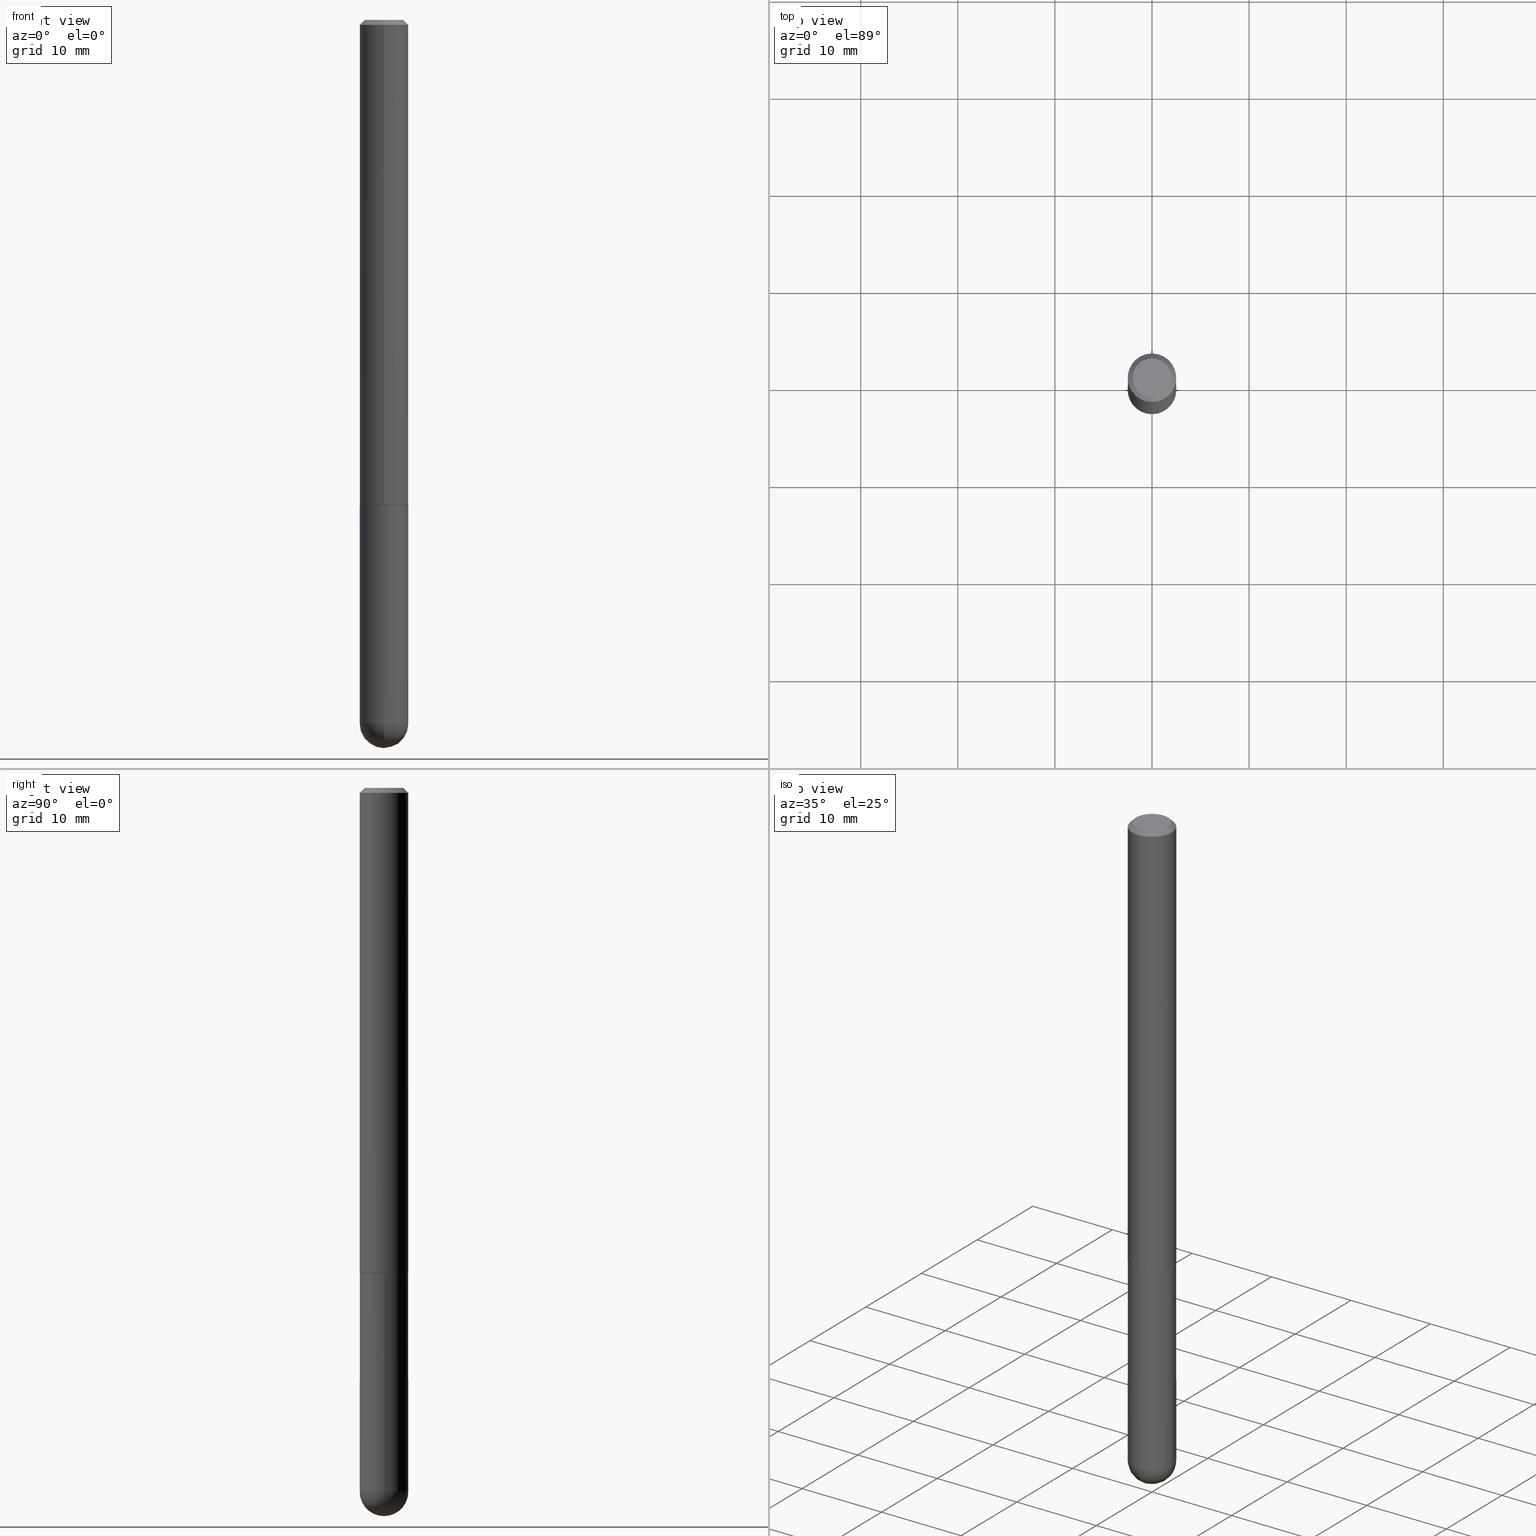
[diagram: canonical four-view strip — front | top / right | iso, engineering-drawing reading convention]
A machine part, canonical four-view strip (front | top / right | iso — engineering-drawing reading convention). The complete STEP part file that produces these views, byte-faithful:
ISO-10303-21;
HEADER;
FILE_DESCRIPTION (( 'STEP AP203' ),
    '1' );
FILE_NAME ('49612.STEP',
    '2024-04-10T12:30:21',
    ( '' ),
    ( '' ),
    'SwSTEP 2.0',
    'SolidWorks 2023',
    '' );
FILE_SCHEMA (( 'CONFIG_CONTROL_DESIGN' ));
ENDSEC;

DATA;
#1 = CARTESIAN_POINT ( 'NONE',  ( -1.550680728280366901E-45, 2.201055714348533762E-31, 6.322583305672671877E-17 ) ) ;
#2 = CALENDAR_DATE ( 2024, 10, 4 ) ;
#3 = ORIENTED_EDGE ( 'NONE', *, *, #26, .T. ) ;
#4 = CARTESIAN_POINT ( 'NONE',  ( 6.874726756182819798E-16, 0.09844999999998993445, -2.854350000000000165 ) ) ;
#5 = CARTESIAN_POINT ( 'NONE',  ( 6.924238959982656172E-16, 0.09744999999999312545, -1.968500000000000361 ) ) ;
#6 = CONICAL_SURFACE ( 'NONE', #368, 0.09844999999999998197, 0.7853981633974471688 ) ;
#7 = EDGE_CURVE ( 'NONE', #299, #39, #358, .T. ) ;
#8 = CARTESIAN_POINT ( 'NONE',  ( 0.09844999999999998197, -6.874726756182128559E-16, 4.800596035771097813E-30 ) ) ;
#9 =( LENGTH_UNIT ( ) NAMED_UNIT ( * ) SI_UNIT ( $, .METRE. ) );
#10 = MECHANICAL_CONTEXT ( 'NONE', #125, 'mechanical' ) ;
#11 = ORIENTED_EDGE ( 'NONE', *, *, #131, .T. ) ;
#12 = PLANE ( 'NONE',  #118 ) ;
#13 = DIRECTION ( 'NONE',  ( -6.982962677686265922E-15, -1.000000000000000000, 3.481260124123204048E-15 ) ) ;
#14 = CC_DESIGN_PERSON_AND_ORGANIZATION_ASSIGNMENT ( #348, #38, ( #184 ) ) ;
#15 = ADVANCED_FACE ( 'NONE', ( #163 ), #61, .T. ) ;
#16 = FACE_OUTER_BOUND ( 'NONE', #72, .T. ) ;
#17 = LOCAL_TIME ( 8, 30, 21.00000000000000000, #150 ) ;
#18 = CARTESIAN_POINT ( 'NONE',  ( 4.813905344975440714E-29, -6.872981015512730918E-15, -1.968499999999999694 ) ) ;
#19 = DIRECTION ( 'NONE',  ( 6.982962677686265922E-15, 1.000000000000000000, -5.549716594543940975E-15 ) ) ;
#20 = ORIENTED_EDGE ( 'NONE', *, *, #161, .T. ) ;
#21 = DATE_TIME_ROLE ( 'classification_date' ) ;
#22 = ORIENTED_EDGE ( 'NONE', *, *, #313, .F. ) ;
#23 = DIRECTION ( 'NONE',  ( 1.000000000000000000, -6.982962677686276177E-15, 0.000000000000000000 ) ) ;
#24 = AXIS2_PLACEMENT_3D ( 'NONE', #128, #94, #217 ) ;
#25 = CIRCLE ( 'NONE', #298, 0.09844999999999998197 ) ;
#26 = EDGE_CURVE ( 'NONE', #376, #54, #104, .T. ) ;
#27 = EDGE_CURVE ( 'NONE', #179, #233, #86, .T. ) ;
#28 = AXIS2_PLACEMENT_3D ( 'NONE', #255, #84, #276 ) ;
#29 = EDGE_LOOP ( 'NONE', ( #145, #88, #115, #352, #91 ) ) ;
#30 = ORIENTED_EDGE ( 'NONE', *, *, #235, .F. ) ;
#31 = MANIFOLD_SOLID_BREP ( 'Body-Move/Copy2[2]', #212 ) ;
#32 = APPROVAL_DATE_TIME ( #303, #378 ) ;
#33 = PRODUCT_DEFINITION ( 'UNKNOWN', '', #234, #180 ) ;
#34 = CIRCLE ( 'NONE', #372, 0.09844999999999998197 ) ;
#35 = SECURITY_CLASSIFICATION_LEVEL ( 'unclassified' ) ;
#36 = LINE ( 'NONE', #5, #37 ) ;
#37 = VECTOR ( 'NONE', #62, 39.37007874015748854 ) ;
#38 = PERSON_AND_ORGANIZATION_ROLE ( 'classification_officer' ) ;
#39 = VERTEX_POINT ( 'NONE', #356 ) ;
#40 = DIRECTION ( 'NONE',  ( -6.982962677686266711E-15, -1.000000000000000000, 2.803332984776053426E-15 ) ) ;
#41 = DIRECTION ( 'NONE',  ( -2.452606242276133797E-29, 3.481260124123203654E-15, 1.000000000000000000 ) ) ;
#42 = EDGE_CURVE ( 'NONE', #57, #197, #63, .T. ) ;
#43 = CARTESIAN_POINT ( 'NONE',  ( 6.980223886934544207E-29, -9.965909759526929881E-15, -2.854349999999999721 ) ) ;
#44 = PLANE ( 'NONE',  #76 ) ;
#45 = DIRECTION ( 'NONE',  ( -2.452606242276133237E-29, 3.481260124123204048E-15, 1.000000000000000000 ) ) ;
#46 = EDGE_LOOP ( 'NONE', ( #49, #11, #266, #251 ) ) ;
#47 = ADVANCED_FACE ( 'NONE', ( #107 ), #199, .F. ) ;
#48 = ORIENTED_EDGE ( 'NONE', *, *, #146, .T. ) ;
#49 = ORIENTED_EDGE ( 'NONE', *, *, #261, .F. ) ;
#50 = VECTOR ( 'NONE', #165, 39.37007874015748143 ) ;
#51 = APPROVAL_PERSON_ORGANIZATION ( #208, #264, #149 ) ;
#52 = APPROVAL_PERSON_ORGANIZATION ( #153, #85, #147 ) ;
#53 = CARTESIAN_POINT ( 'NONE',  ( 6.980223886934544207E-29, -9.965909759526929881E-15, -2.854349999999999721 ) ) ;
#54 = VERTEX_POINT ( 'NONE', #172 ) ;
#55 = ADVANCED_FACE ( 'NONE', ( #387 ), #151, .T. ) ;
#56 = AXIS2_PLACEMENT_3D ( 'NONE', #379, #166, #315 ) ;
#57 = VERTEX_POINT ( 'NONE', #284 ) ;
#58 = DIRECTION ( 'NONE',  ( 0.000000000000000000, 0.000000000000000000, 1.000000000000000000 ) ) ;
#59 = ORIENTED_EDGE ( 'NONE', *, *, #120, .F. ) ;
#60 = FACE_OUTER_BOUND ( 'NONE', #117, .T. ) ;
#61 = CYLINDRICAL_SURFACE ( 'NONE', #98, 0.09845000000000009299 ) ;
#62 = DIRECTION ( 'NONE',  ( 5.024295867787803643E-15, 0.7071067811865135999, 0.7071067811865812125 ) ) ;
#63 = CIRCLE ( 'NONE', #123, 0.07844999999999993645 ) ;
#64 = AXIS2_PLACEMENT_3D ( 'NONE', #132, #316, #65 ) ;
#65 = DIRECTION ( 'NONE',  ( -6.982962677686266711E-15, -1.000000000000000000, 2.803332984776053426E-15 ) ) ;
#66 = DIRECTION ( 'NONE',  ( -2.452606242276133797E-29, 3.481260124123203654E-15, 1.000000000000000000 ) ) ;
#67 = DIRECTION ( 'NONE',  ( 2.438088387897960049E-29, -3.491481338843145188E-15, -1.000000000000000000 ) ) ;
#68 = EDGE_CURVE ( 'NONE', #39, #230, #34, .T. ) ;
#69 = CARTESIAN_POINT ( 'NONE',  ( 6.995293233558191951E-16, 0.09845000000000009299, -3.427300592199297553E-16 ) ) ;
#70 = DIRECTION ( 'NONE',  ( -6.982962677686265922E-15, -1.000000000000000000, 3.481260124123203654E-15 ) ) ;
#71 = AXIS2_PLACEMENT_3D ( 'NONE', #224, #361, #277 ) ;
#72 = EDGE_LOOP ( 'NONE', ( #369, #20, #318, #403 ) ) ;
#73 = EDGE_CURVE ( 'NONE', #190, #179, #238, .T. ) ;
#74 = CARTESIAN_POINT ( 'NONE',  ( -0.09844999999999998197, -7.719916064164013473E-15, -2.854349999999999721 ) ) ;
#75 = ADVANCED_FACE ( 'NONE', ( #400 ), #227, .T. ) ;
#76 = AXIS2_PLACEMENT_3D ( 'NONE', #280, #67, #390 ) ;
#77 = EDGE_LOOP ( 'NONE', ( #392, #3, #130, #30, #297 ) ) ;
#78 = EDGE_LOOP ( 'NONE', ( #371, #323, #206, #148 ) ) ;
#79 = DATE_AND_TIME ( #237, #183 ) ;
#80 = CC_DESIGN_APPROVAL ( #378, ( #33 ) ) ;
#81 = LOCAL_TIME ( 8, 30, 21.00000000000000000, #269 ) ;
#82 = EDGE_LOOP ( 'NONE', ( #112, #178, #111, #405 ) ) ;
#83 = DIRECTION ( 'NONE',  ( -2.445468806185136597E-29, 3.491481338843145583E-15, 1.000000000000000000 ) ) ;
#84 = DIRECTION ( 'NONE',  ( -2.452606242276133797E-29, 3.481260124123203654E-15, 1.000000000000000000 ) ) ;
#85 = APPROVAL ( #274, 'UNSPECIFIED' ) ;
#86 = CIRCLE ( 'NONE', #331, 0.09844999999999998197 ) ;
#87 = CONICAL_SURFACE ( 'NONE', #71, 0.09844999999999998197, 0.7853981633974471688 ) ;
#88 = ORIENTED_EDGE ( 'NONE', *, *, #241, .T. ) ;
#89 = DIRECTION ( 'NONE',  ( -2.452606242276133797E-29, 3.481260124123203654E-15, 1.000000000000000000 ) ) ;
#90 = PERSON_AND_ORGANIZATION ( #272, #200 ) ;
#91 = ORIENTED_EDGE ( 'NONE', *, *, #296, .F. ) ;
#92 = FACE_OUTER_BOUND ( 'NONE', #97, .T. ) ;
#93 = LINE ( 'NONE', #285, #113 ) ;
#94 = DIRECTION ( 'NONE',  ( -2.452606242276133797E-29, 3.481260124123203654E-15, 1.000000000000000000 ) ) ;
#95 = FACE_OUTER_BOUND ( 'NONE', #225, .T. ) ;
#96 = DIRECTION ( 'NONE',  ( -6.982962677686266711E-15, -1.000000000000000000, 2.803332984776053426E-15 ) ) ;
#97 = EDGE_LOOP ( 'NONE', ( #389, #173 ) ) ;
#98 = AXIS2_PLACEMENT_3D ( 'NONE', #396, #259, #13 ) ;
#99 = DIRECTION ( 'NONE',  ( -1.000000000000000000, 7.105427357601001070E-15, -4.926315508542082329E-29 ) ) ;
#100 = EDGE_CURVE ( 'NONE', #230, #39, #144, .T. ) ;
#101 = CARTESIAN_POINT ( 'NONE',  ( 4.827955387920569844E-29, -6.852860554336525962E-15, -1.968500000000000139 ) ) ;
#102 = VERTEX_POINT ( 'NONE', #209 ) ;
#103 = CYLINDRICAL_SURFACE ( 'NONE', #28, 0.09845000000000009299 ) ;
#104 = LINE ( 'NONE', #220, #265 ) ;
#105 = FACE_OUTER_BOUND ( 'NONE', #82, .T. ) ;
#106 = EDGE_CURVE ( 'NONE', #197, #39, #337, .T. ) ;
#107 = FACE_OUTER_BOUND ( 'NONE', #223, .T. ) ;
#108 =( CONVERSION_BASED_UNIT ( 'INCH', #366 ) LENGTH_UNIT ( ) NAMED_UNIT ( #328 ) );
#109 = AXIS2_PLACEMENT_3D ( 'NONE', #393, #136, #288 ) ;
#110 = CARTESIAN_POINT ( 'NONE',  ( 4.905212484552273515E-31, -6.962520248246416231E-17, -0.02000000000000002470 ) ) ;
#111 = ORIENTED_EDGE ( 'NONE', *, *, #100, .T. ) ;
#112 = ORIENTED_EDGE ( 'NONE', *, *, #42, .F. ) ;
#113 = VECTOR ( 'NONE', #351, 39.37007874015748143 ) ;
#114 = CC_DESIGN_APPROVAL ( #264, ( #234 ) ) ;
#115 = ORIENTED_EDGE ( 'NONE', *, *, #73, .T. ) ;
#116 = DATE_AND_TIME ( #408, #81 ) ;
#117 = EDGE_LOOP ( 'NONE', ( #59, #346 ) ) ;
#118 = AXIS2_PLACEMENT_3D ( 'NONE', #290, #45, #252 ) ;
#119 = DIRECTION ( 'NONE',  ( -2.452606242276133797E-29, 3.481260124123203654E-15, 1.000000000000000000 ) ) ;
#120 = EDGE_CURVE ( 'NONE', #140, #222, #267, .T. ) ;
#121 = DATE_AND_TIME ( #2, #322 ) ;
#122 = CYLINDRICAL_SURFACE ( 'NONE', #391, 0.09844999999999998197 ) ;
#123 = AXIS2_PLACEMENT_3D ( 'NONE', #293, #66, #70 ) ;
#124 = CIRCLE ( 'NONE', #171, 0.09844999999999999585 ) ;
#125 = APPLICATION_CONTEXT ( 'configuration controlled 3d designs of mechanical parts and assemblies' ) ;
#126 = CC_DESIGN_SECURITY_CLASSIFICATION ( #184, ( #234 ) ) ;
#127 = COORDINATED_UNIVERSAL_TIME_OFFSET ( 5, 0, .BEHIND. ) ;
#128 = CARTESIAN_POINT ( 'NONE',  ( 4.827955387920569844E-29, -6.852860554336525962E-15, -1.968500000000000139 ) ) ;
#129 = DIRECTION ( 'NONE',  ( 1.000000000000000000, -6.982962677686276177E-15, 0.000000000000000000 ) ) ;
#130 = ORIENTED_EDGE ( 'NONE', *, *, #339, .F. ) ;
#131 = EDGE_CURVE ( 'NONE', #222, #140, #321, .T. ) ;
#132 = CARTESIAN_POINT ( 'NONE',  ( 4.827955387920569844E-29, -6.852860554336525962E-15, -1.968500000000000139 ) ) ;
#133 = DIRECTION ( 'NONE',  ( -6.982962677686265133E-15, -1.000000000000000000, 3.468572871589974153E-15 ) ) ;
#134 = CIRCLE ( 'NONE', #181, 0.09845000000000030116 ) ;
#135 = AXIS2_PLACEMENT_3D ( 'NONE', #174, #143, #205 ) ;
#136 = DIRECTION ( 'NONE',  ( -1.000000000000000000, 6.982962677686265922E-15, -4.883557194083112340E-29 ) ) ;
#137 = DIRECTION ( 'NONE',  ( -2.445468806185136597E-29, 3.491481338843145583E-15, 1.000000000000000000 ) ) ;
#138 = APPROVAL_STATUS ( 'not_yet_approved' ) ;
#139 = ORIENTED_EDGE ( 'NONE', *, *, #228, .F. ) ;
#140 = VERTEX_POINT ( 'NONE', #382 ) ;
#141 = DIRECTION ( 'NONE',  ( -2.445468806185136597E-29, 3.491481338843145583E-15, 1.000000000000000000 ) ) ;
#142 = AXIS2_PLACEMENT_3D ( 'NONE', #219, #41, #156 ) ;
#143 = DIRECTION ( 'NONE',  ( 1.000000000000000000, -6.982962677686265922E-15, 4.883557194083112340E-29 ) ) ;
#144 = CIRCLE ( 'NONE', #210, 0.09844999999999998197 ) ;
#145 = ORIENTED_EDGE ( 'NONE', *, *, #26, .F. ) ;
#146 = EDGE_CURVE ( 'NONE', #310, #299, #213, .T. ) ;
#147 = APPROVAL_ROLE ( '' ) ;
#148 = ORIENTED_EDGE ( 'NONE', *, *, #370, .F. ) ;
#149 = APPROVAL_ROLE ( '' ) ;
#150 = COORDINATED_UNIVERSAL_TIME_OFFSET ( 5, 0, .BEHIND. ) ;
#151 = CONICAL_SURFACE ( 'NONE', #24, 0.09744999999999996720, 0.7853981633973970977 ) ;
#152 = AXIS2_PLACEMENT_3D ( 'NONE', #1, #119, #242 ) ;
#153 = PERSON_AND_ORGANIZATION ( #272, #200 ) ;
#154 = CARTESIAN_POINT ( 'NONE',  ( -6.804897129404782281E-16, -0.09745000000000682283, -1.968499999999999694 ) ) ;
#155 = DIRECTION ( 'NONE',  ( 1.000000000000000000, -6.982962677686266711E-15, 4.876176775795935793E-29 ) ) ;
#156 = DIRECTION ( 'NONE',  ( -6.982962677686265922E-15, -1.000000000000000000, 2.774858297271972854E-15 ) ) ;
#157 = APPROVAL_PERSON_ORGANIZATION ( #291, #378, #395 ) ;
#158 = DIRECTION ( 'NONE',  ( -2.445468806185136877E-29, 3.491481338843145188E-15, 1.000000000000000000 ) ) ;
#159 = PRODUCT_RELATED_PRODUCT_CATEGORY ( 'detail', '', ( #270 ) ) ;
#160 = FACE_OUTER_BOUND ( 'NONE', #383, .T. ) ;
#161 = EDGE_CURVE ( 'NONE', #299, #310, #343, .T. ) ;
#162 = APPLICATION_PROTOCOL_DEFINITION ( 'international standard', 'config_control_design', 1994, #125 ) ;
#163 = FACE_OUTER_BOUND ( 'NONE', #365, .T. ) ;
#164 = DIRECTION ( 'NONE',  ( 1.000000000000000000, 0.000000000000000000, 0.000000000000000000 ) ) ;
#165 = DIRECTION ( 'NONE',  ( -2.452606242276134078E-29, 3.481260124123204048E-15, 1.000000000000000000 ) ) ;
#166 = DIRECTION ( 'NONE',  ( -2.445468806185136597E-29, 3.491481338843145583E-15, 1.000000000000000000 ) ) ;
#167 = CARTESIAN_POINT ( 'NONE',  ( -6.874726756181661159E-16, -0.09845000000000705964, -1.967499999999999361 ) ) ;
#168 = APPLICATION_PROTOCOL_DEFINITION ( 'international standard', 'config_control_design', 1994, #404 ) ;
#169 = DIRECTION ( 'NONE',  ( 1.000000000000000000, -6.982962677686276177E-15, 0.000000000000000000 ) ) ;
#170 = CC_DESIGN_DATE_AND_TIME_ASSIGNMENT ( #121, #21, ( #184 ) ) ;
#171 = AXIS2_PLACEMENT_3D ( 'NONE', #18, #137, #317 ) ;
#172 = CARTESIAN_POINT ( 'NONE',  ( -0.09844999999999999585, -7.719916064164011895E-15, -1.968499999999999694 ) ) ;
#173 = ORIENTED_EDGE ( 'NONE', *, *, #296, .T. ) ;
#174 = CARTESIAN_POINT ( 'NONE',  ( 6.649104109020657960E-29, -1.044009212766698018E-14, -2.854349999999999721 ) ) ;
#175 = VECTOR ( 'NONE', #191, 39.37007874015748143 ) ;
#176 = CC_DESIGN_APPROVAL ( #85, ( #184 ) ) ;
#177 = ADVANCED_FACE ( 'NONE', ( #92 ), #44, .F. ) ;
#178 = ORIENTED_EDGE ( 'NONE', *, *, #313, .T. ) ;
#179 = VERTEX_POINT ( 'NONE', #216 ) ;
#180 = DESIGN_CONTEXT ( 'detailed design', #404, 'design' ) ;
#181 = AXIS2_PLACEMENT_3D ( 'NONE', #319, #99, #283 ) ;
#182 = LOCAL_TIME ( 8, 30, 21.00000000000000000, #345 ) ;
#183 = LOCAL_TIME ( 8, 30, 21.00000000000000000, #309 ) ;
#184 = SECURITY_CLASSIFICATION ( '', '', #35 ) ;
#185 = PERSON_AND_ORGANIZATION_ROLE ( 'design_supplier' ) ;
#186 = DIRECTION ( 'NONE',  ( 4.937700262164541731E-15, 0.7071067811865442421, -0.7071067811865507924 ) ) ;
#187 = CARTESIAN_POINT ( 'NONE',  ( 4.825502781678292621E-29, -6.849379294212400691E-15, -1.967499999999999805 ) ) ;
#188 = EDGE_CURVE ( 'NONE', #239, #190, #134, .T. ) ;
#189 = VECTOR ( 'NONE', #186, 39.37007874015748143 ) ;
#190 = VERTEX_POINT ( 'NONE', #250 ) ;
#191 = DIRECTION ( 'NONE',  ( -4.937700262164294818E-15, -0.7071067811865088260, 0.7071067811865862085 ) ) ;
#192 = CARTESIAN_POINT ( 'NONE',  ( 6.176430488413502480E-16, 0.07844999999999993645, -2.098790236807383565E-16 ) ) ;
#193 = DIRECTION ( 'NONE',  ( -1.000000000000000000, 6.982962677686265922E-15, -4.883557194083112340E-29 ) ) ;
#194 = CARTESIAN_POINT ( 'NONE',  ( 4.905212484552273515E-31, -6.962520248246416231E-17, -0.02000000000000002470 ) ) ;
#195 = PERSON_AND_ORGANIZATION ( #272, #200 ) ;
#196 = ADVANCED_FACE ( 'NONE', ( #95 ), #324, .T. ) ;
#197 = VERTEX_POINT ( 'NONE', #192 ) ;
#198 = DIRECTION ( 'NONE',  ( -2.452606242276133797E-29, 3.481260124123203654E-15, 1.000000000000000000 ) ) ;
#199 = PLANE ( 'NONE',  #320 ) ;
#200 = ORGANIZATION ( 'UNSPECIFIED', 'UNSPECIFIED', '' ) ;
#201 = DIRECTION ( 'NONE',  ( -2.445468806185136877E-29, 3.491481338843145188E-15, 1.000000000000000000 ) ) ;
#202 = ORIENTED_EDGE ( 'NONE', *, *, #42, .T. ) ;
#203 = ADVANCED_FACE ( 'NONE', ( #16 ), #103, .T. ) ;
#204 = VECTOR ( 'NONE', #347, 39.37007874015748143 ) ;
#205 = DIRECTION ( 'NONE',  ( 6.982962677686266711E-15, 1.000000000000000000, 0.000000000000000000 ) ) ;
#206 = ORIENTED_EDGE ( 'NONE', *, *, #241, .F. ) ;
#207 = ORIENTED_EDGE ( 'NONE', *, *, #100, .F. ) ;
#208 = PERSON_AND_ORGANIZATION ( #272, #200 ) ;
#209 = CARTESIAN_POINT ( 'NONE',  ( 0.09844999999999999585, -7.560453691130944267E-15, -1.968499999999999694 ) ) ;
#210 = AXIS2_PLACEMENT_3D ( 'NONE', #110, #198, #411 ) ;
#211 = ORIENTED_EDGE ( 'NONE', *, *, #394, .T. ) ;
#212 = CLOSED_SHELL ( 'NONE', ( #359, #15, #406, #401, #203, #55, #326, #47 ) ) ;
#213 = CIRCLE ( 'NONE', #253, 0.09845000000000021789 ) ;
#214 = FACE_OUTER_BOUND ( 'NONE', #77, .T. ) ;
#215 = DIRECTION ( 'NONE',  ( -6.982962677686265922E-15, -1.000000000000000000, 2.774858297271972854E-15 ) ) ;
#216 = CARTESIAN_POINT ( 'NONE',  ( 0.09844999999999998197, -9.106918063138045721E-15, -2.854349999999999721 ) ) ;
#217 = DIRECTION ( 'NONE',  ( -6.982962677686266711E-15, -1.000000000000000000, 2.803332984776053426E-15 ) ) ;
#218 = CARTESIAN_POINT ( 'NONE',  ( 0.000000000000000000, 0.000000000000000000, 0.000000000000000000 ) ) ;
#219 = CARTESIAN_POINT ( 'NONE',  ( 4.825502781678292621E-29, -6.849379294212400691E-15, -1.967499999999999805 ) ) ;
#220 = CARTESIAN_POINT ( 'NONE',  ( -0.09844999999999998197, 6.995293233558185049E-16, -4.842691596355953341E-30 ) ) ;
#221 = DIRECTION ( 'NONE',  ( -2.445468806185136597E-29, 3.491481338843145583E-15, 1.000000000000000000 ) ) ;
#222 = VERTEX_POINT ( 'NONE', #342 ) ;
#223 = EDGE_LOOP ( 'NONE', ( #373, #202 ) ) ;
#224 = CARTESIAN_POINT ( 'NONE',  ( 4.905212484552273515E-31, -6.962520248246416231E-17, -0.02000000000000002470 ) ) ;
#225 = EDGE_LOOP ( 'NONE', ( #275, #211, #402, #305 ) ) ;
#226 = CIRCLE ( 'NONE', #135, 0.09845000000000030116 ) ;
#227 = SPHERICAL_SURFACE ( 'NONE', #292, 0.09845000000000030116 ) ;
#228 = EDGE_CURVE ( 'NONE', #310, #230, #282, .T. ) ;
#229 = FACE_OUTER_BOUND ( 'NONE', #249, .T. ) ;
#230 = VERTEX_POINT ( 'NONE', #312 ) ;
#231 = ADVANCED_BREP_SHAPE_REPRESENTATION ( '49612', ( #289, #31, #244 ), #332 ) ;
#232 = CLOSED_SHELL ( 'NONE', ( #246, #75, #196, #177, #308 ) ) ;
#233 = VERTEX_POINT ( 'NONE', #4 ) ;
#234 = PRODUCT_DEFINITION_FORMATION_WITH_SPECIFIED_SOURCE ( 'ANY', '', #270, .NOT_KNOWN. ) ;
#235 = EDGE_CURVE ( 'NONE', #179, #102, #350, .T. ) ;
#236 = APPROVAL_DATE_TIME ( #116, #264 ) ;
#237 = CALENDAR_DATE ( 2024, 10, 4 ) ;
#238 = CIRCLE ( 'NONE', #362, 0.09844999999999998197 ) ;
#239 = VERTEX_POINT ( 'NONE', #388 ) ;
#240 = CC_DESIGN_PERSON_AND_ORGANIZATION_ASSIGNMENT ( #90, #185, ( #234 ) ) ;
#241 = EDGE_CURVE ( 'NONE', #376, #190, #25, .T. ) ;
#242 = DIRECTION ( 'NONE',  ( -6.982962677686265922E-15, -1.000000000000000000, 3.481260124123203654E-15 ) ) ;
#243 = DIRECTION ( 'NONE',  ( 1.000000000000000000, -6.982962677686266711E-15, 4.876176775795935793E-29 ) ) ;
#244 = AXIS2_PLACEMENT_3D ( 'NONE', #407, #58, #164 ) ;
#245 = CYLINDRICAL_SURFACE ( 'NONE', #399, 0.09844999999999998197 ) ;
#246 = ADVANCED_FACE ( 'NONE', ( #214 ), #122, .T. ) ;
#247 = LINE ( 'NONE', #154, #175 ) ;
#248 = CARTESIAN_POINT ( 'NONE',  ( 0.000000000000000000, 0.000000000000000000, 0.000000000000000000 ) ) ;
#249 = EDGE_LOOP ( 'NONE', ( #22, #398, #336, #330 ) ) ;
#250 = CARTESIAN_POINT ( 'NONE',  ( -6.995293233557512545E-16, -0.09845000000001033480, -2.854349999999998833 ) ) ;
#251 = ORIENTED_EDGE ( 'NONE', *, *, #161, .F. ) ;
#252 = DIRECTION ( 'NONE',  ( -6.982962677686265922E-15, -1.000000000000000000, 3.481260124123204048E-15 ) ) ;
#253 = AXIS2_PLACEMENT_3D ( 'NONE', #187, #89, #215 ) ;
#254 = CARTESIAN_POINT ( 'NONE',  ( 6.980223886934544207E-29, -9.965909759526929881E-15, -2.854349999999999721 ) ) ;
#255 = CARTESIAN_POINT ( 'NONE',  ( 0.000000000000000000, 0.000000000000000000, 0.000000000000000000 ) ) ;
#256 = DIRECTION ( 'NONE',  ( -2.452606242276133797E-29, 3.481260124123203654E-15, 1.000000000000000000 ) ) ;
#257 = ORIENTED_EDGE ( 'NONE', *, *, #7, .T. ) ;
#258 = CARTESIAN_POINT ( 'NONE',  ( 4.905212484552273515E-31, -6.962520248246416231E-17, -0.02000000000000002470 ) ) ;
#259 = DIRECTION ( 'NONE',  ( -2.452606242276133797E-29, 3.481260124123203654E-15, 1.000000000000000000 ) ) ;
#260 = CALENDAR_DATE ( 2024, 10, 4 ) ;
#261 = EDGE_CURVE ( 'NONE', #222, #299, #36, .T. ) ;
#262 =( NAMED_UNIT ( * ) SI_UNIT ( $, .STERADIAN. ) SOLID_ANGLE_UNIT ( ) );
#263 = DATE_AND_TIME ( #335, #17 ) ;
#264 = APPROVAL ( #374, 'UNSPECIFIED' ) ;
#265 = VECTOR ( 'NONE', #201, 39.37007874015748143 ) ;
#266 = ORIENTED_EDGE ( 'NONE', *, *, #273, .T. ) ;
#267 = CIRCLE ( 'NONE', #381, 0.09744999999999996720 ) ;
#268 = DATE_TIME_ROLE ( 'creation_date' ) ;
#269 = COORDINATED_UNIVERSAL_TIME_OFFSET ( 5, 0, .BEHIND. ) ;
#270 = PRODUCT ( '49612', '49612', '', ( #10 ) ) ;
#271 = PERSON_AND_ORGANIZATION ( #272, #200 ) ;
#272 = PERSON ( 'UNSPECIFIED', 'UNSPECIFIED', 'UNSPECIFIED', ('UNSPECIFIED'), ('UNSPECIFIED'), ('UNSPECIFIED') ) ;
#273 = EDGE_CURVE ( 'NONE', #140, #310, #247, .T. ) ;
#274 = APPROVAL_STATUS ( 'not_yet_approved' ) ;
#275 = ORIENTED_EDGE ( 'NONE', *, *, #188, .F. ) ;
#276 = DIRECTION ( 'NONE',  ( -6.982962677686265922E-15, -1.000000000000000000, 3.481260124123204048E-15 ) ) ;
#277 = DIRECTION ( 'NONE',  ( 6.982962677686265133E-15, 1.000000000000000000, -3.468572871589974153E-15 ) ) ;
#278 = EDGE_CURVE ( 'NONE', #197, #57, #311, .T. ) ;
#279 = CARTESIAN_POINT ( 'NONE',  ( -6.874726756182135461E-16, -0.09845000000000009299, 3.427300592199297553E-16 ) ) ;
#280 = CARTESIAN_POINT ( 'NONE',  ( 6.874726756182609764E-16, 0.09844999999999311247, -1.968500000000000139 ) ) ;
#281 = AXIS2_PLACEMENT_3D ( 'NONE', #101, #256, #96 ) ;
#282 = LINE ( 'NONE', #279, #204 ) ;
#283 = DIRECTION ( 'NONE',  ( -7.105427357601001070E-15, -1.000000000000000000, 0.000000000000000000 ) ) ;
#284 = CARTESIAN_POINT ( 'NONE',  ( -6.068110479028913825E-16, -0.07844999999999993645, 3.363306897941918187E-16 ) ) ;
#285 = CARTESIAN_POINT ( 'NONE',  ( -6.754160278806065167E-16, -0.09845000000000005136, -0.01999999999999968470 ) ) ;
#286 = ORIENTED_EDGE ( 'NONE', *, *, #146, .F. ) ;
#287 = CC_DESIGN_PERSON_AND_ORGANIZATION_ASSIGNMENT ( #195, #329, ( #270 ) ) ;
#288 = DIRECTION ( 'NONE',  ( 6.982962677686265922E-15, 1.000000000000000000, -5.549716594543940975E-15 ) ) ;
#289 = MANIFOLD_SOLID_BREP ( 'Body-Move/Copy2[1]', #232 ) ;
#290 = CARTESIAN_POINT ( 'NONE',  ( 4.827955387920569844E-29, -6.852860554336525962E-15, -1.968500000000000139 ) ) ;
#291 = PERSON_AND_ORGANIZATION ( #272, #200 ) ;
#292 = AXIS2_PLACEMENT_3D ( 'NONE', #386, #193, #19 ) ;
#293 = CARTESIAN_POINT ( 'NONE',  ( -1.550680728280366901E-45, 2.201055714348533762E-31, 6.322583305672671877E-17 ) ) ;
#294 = DIRECTION ( 'NONE',  ( 6.982962677686265922E-15, 1.000000000000000000, -3.481260124123204048E-15 ) ) ;
#295 = PRODUCT_DEFINITION_SHAPE ( 'NONE', 'NONE',  #33 ) ;
#296 = EDGE_CURVE ( 'NONE', #54, #102, #338, .T. ) ;
#297 = ORIENTED_EDGE ( 'NONE', *, *, #27, .T. ) ;
#298 = AXIS2_PLACEMENT_3D ( 'NONE', #377, #83, #384 ) ;
#299 = VERTEX_POINT ( 'NONE', #355 ) ;
#300 = CC_DESIGN_PERSON_AND_ORGANIZATION_ASSIGNMENT ( #301, #410, ( #33 ) ) ;
#301 = PERSON_AND_ORGANIZATION ( #272, #200 ) ;
#302 = DIRECTION ( 'NONE',  ( 2.452606242276133797E-29, -3.481260124123203654E-15, -1.000000000000000000 ) ) ;
#303 = DATE_AND_TIME ( #260, #182 ) ;
#304 = PERSON_AND_ORGANIZATION_ROLE ( 'creator' ) ;
#305 = ORIENTED_EDGE ( 'NONE', *, *, #73, .F. ) ;
#306 = VECTOR ( 'NONE', #158, 39.37007874015748143 ) ;
#307 = ORIENTED_EDGE ( 'NONE', *, *, #120, .T. ) ;
#308 = ADVANCED_FACE ( 'NONE', ( #325 ), #245, .T. ) ;
#309 = COORDINATED_UNIVERSAL_TIME_OFFSET ( 5, 0, .BEHIND. ) ;
#310 = VERTEX_POINT ( 'NONE', #167 ) ;
#311 = CIRCLE ( 'NONE', #152, 0.07844999999999993645 ) ;
#312 = CARTESIAN_POINT ( 'NONE',  ( -6.754160278806065167E-16, -0.09845000000000005136, -0.01999999999999968470 ) ) ;
#313 = EDGE_CURVE ( 'NONE', #57, #230, #93, .T. ) ;
#314 = DIRECTION ( 'NONE',  ( -2.452606242276133797E-29, 3.481260124123203654E-15, 1.000000000000000000 ) ) ;
#315 = DIRECTION ( 'NONE',  ( 1.000000000000000000, -6.982962677686265922E-15, 0.000000000000000000 ) ) ;
#316 = DIRECTION ( 'NONE',  ( -2.452606242276133797E-29, 3.481260124123203654E-15, 1.000000000000000000 ) ) ;
#317 = DIRECTION ( 'NONE',  ( 1.000000000000000000, -6.982962677686265922E-15, 0.000000000000000000 ) ) ;
#318 = ORIENTED_EDGE ( 'NONE', *, *, #228, .T. ) ;
#319 = CARTESIAN_POINT ( 'NONE',  ( 6.649104109020657960E-29, -1.044009212766698018E-14, -2.854349999999999721 ) ) ;
#320 = AXIS2_PLACEMENT_3D ( 'NONE', #334, #333, #294 ) ;
#321 = CIRCLE ( 'NONE', #64, 0.09744999999999996720 ) ;
#322 = LOCAL_TIME ( 8, 30, 21.00000000000000000, #127 ) ;
#323 = ORIENTED_EDGE ( 'NONE', *, *, #188, .T. ) ;
#324 = SPHERICAL_SURFACE ( 'NONE', #109, 0.09845000000000030116 ) ;
#325 = FACE_OUTER_BOUND ( 'NONE', #29, .T. ) ;
#326 = ADVANCED_FACE ( 'NONE', ( #60 ), #12, .F. ) ;
#327 = DIRECTION ( 'NONE',  ( -2.452606242276133797E-29, 3.481260124123203654E-15, 1.000000000000000000 ) ) ;
#328 = DIMENSIONAL_EXPONENTS ( 1.000000000000000000, 0.000000000000000000, 0.000000000000000000, 0.000000000000000000, 0.000000000000000000, 0.000000000000000000, 0.000000000000000000 ) ;
#329 = PERSON_AND_ORGANIZATION_ROLE ( 'design_owner' ) ;
#330 = ORIENTED_EDGE ( 'NONE', *, *, #68, .T. ) ;
#331 = AXIS2_PLACEMENT_3D ( 'NONE', #53, #360, #169 ) ;
#332 =( GEOMETRIC_REPRESENTATION_CONTEXT ( 3 ) GLOBAL_UNCERTAINTY_ASSIGNED_CONTEXT ( ( #380 ) ) GLOBAL_UNIT_ASSIGNED_CONTEXT ( ( #108, #364, #262 ) ) REPRESENTATION_CONTEXT ( 'NONE', 'WORKASPACE' ) );
#333 = DIRECTION ( 'NONE',  ( 2.452606242276133237E-29, -3.481260124123204048E-15, -1.000000000000000000 ) ) ;
#334 = CARTESIAN_POINT ( 'NONE',  ( 5.478134220644871470E-16, 0.07844999999999993645, -2.414919402091017344E-16 ) ) ;
#335 = CALENDAR_DATE ( 2024, 10, 4 ) ;
#336 = ORIENTED_EDGE ( 'NONE', *, *, #106, .T. ) ;
#337 = LINE ( 'NONE', #344, #189 ) ;
#338 = CIRCLE ( 'NONE', #56, 0.09844999999999999585 ) ;
#339 = EDGE_CURVE ( 'NONE', #102, #54, #124, .T. ) ;
#340 = CC_DESIGN_DATE_AND_TIME_ASSIGNMENT ( #263, #268, ( #33 ) ) ;
#341 = ORIENTED_EDGE ( 'NONE', *, *, #261, .T. ) ;
#342 = CARTESIAN_POINT ( 'NONE',  ( 6.959766096770668116E-16, 0.09744999999999313933, -1.968500000000000361 ) ) ;
#343 = CIRCLE ( 'NONE', #142, 0.09845000000000021789 ) ;
#344 = CARTESIAN_POINT ( 'NONE',  ( 6.874726756182131517E-16, 0.09844999999999991258, -0.02000000000000036818 ) ) ;
#345 = COORDINATED_UNIVERSAL_TIME_OFFSET ( 5, 0, .BEHIND. ) ;
#346 = ORIENTED_EDGE ( 'NONE', *, *, #131, .F. ) ;
#347 = DIRECTION ( 'NONE',  ( -2.452606242276134078E-29, 3.481260124123204048E-15, 1.000000000000000000 ) ) ;
#348 = PERSON_AND_ORGANIZATION ( #272, #200 ) ;
#349 = CC_DESIGN_PERSON_AND_ORGANIZATION_ASSIGNMENT ( #271, #304, ( #234 ) ) ;
#350 = LINE ( 'NONE', #8, #306 ) ;
#351 = DIRECTION ( 'NONE',  ( -4.851104656540957964E-15, -0.7071067811865491270, -0.7071067811865459074 ) ) ;
#352 = ORIENTED_EDGE ( 'NONE', *, *, #235, .T. ) ;
#353 = DIRECTION ( 'NONE',  ( -2.445468806185136597E-29, 3.491481338843145583E-15, 1.000000000000000000 ) ) ;
#354 = CONICAL_SURFACE ( 'NONE', #281, 0.09744999999999996720, 0.7853981633973970977 ) ;
#355 = CARTESIAN_POINT ( 'NONE',  ( 6.995293233558439456E-16, 0.09844999999999337614, -1.967500000000000027 ) ) ;
#356 = CARTESIAN_POINT ( 'NONE',  ( 6.874726756182131517E-16, 0.09844999999999991258, -0.02000000000000036818 ) ) ;
#357 = CARTESIAN_POINT ( 'NONE',  ( 4.827955387920569844E-29, -6.852860554336525962E-15, -1.968500000000000139 ) ) ;
#358 = LINE ( 'NONE', #69, #50 ) ;
#359 = ADVANCED_FACE ( 'NONE', ( #160 ), #354, .T. ) ;
#360 = DIRECTION ( 'NONE',  ( -2.445468806185136597E-29, 3.491481338843145583E-15, 1.000000000000000000 ) ) ;
#361 = DIRECTION ( 'NONE',  ( 2.452606242276133797E-29, -3.481260124123203654E-15, -1.000000000000000000 ) ) ;
#362 = AXIS2_PLACEMENT_3D ( 'NONE', #254, #141, #23 ) ;
#363 = ORIENTED_EDGE ( 'NONE', *, *, #273, .F. ) ;
#364 =( NAMED_UNIT ( * ) PLANE_ANGLE_UNIT ( ) SI_UNIT ( $, .RADIAN. ) );
#365 = EDGE_LOOP ( 'NONE', ( #48, #257, #207, #139 ) ) ;
#366 = LENGTH_MEASURE_WITH_UNIT ( LENGTH_MEASURE( 0.02539999999999999897 ), #9 );
#367 = CIRCLE ( 'NONE', #409, 0.09844999999999998197 ) ;
#368 = AXIS2_PLACEMENT_3D ( 'NONE', #258, #302, #397 ) ;
#369 = ORIENTED_EDGE ( 'NONE', *, *, #7, .F. ) ;
#370 = EDGE_CURVE ( 'NONE', #233, #376, #367, .T. ) ;
#371 = ORIENTED_EDGE ( 'NONE', *, *, #394, .F. ) ;
#372 = AXIS2_PLACEMENT_3D ( 'NONE', #194, #327, #133 ) ;
#373 = ORIENTED_EDGE ( 'NONE', *, *, #278, .T. ) ;
#374 = APPROVAL_STATUS ( 'not_yet_approved' ) ;
#375 = APPROVAL_DATE_TIME ( #79, #85 ) ;
#376 = VERTEX_POINT ( 'NONE', #74 ) ;
#377 = CARTESIAN_POINT ( 'NONE',  ( 6.980223886934544207E-29, -9.965909759526929881E-15, -2.854349999999999721 ) ) ;
#378 = APPROVAL ( #138, 'UNSPECIFIED' ) ;
#379 = CARTESIAN_POINT ( 'NONE',  ( 4.813905344975440714E-29, -6.872981015512730918E-15, -1.968499999999999694 ) ) ;
#380 = UNCERTAINTY_MEASURE_WITH_UNIT (LENGTH_MEASURE( 1.000000000000000082E-05 ), #108, 'distance_accuracy_value', 'NONE');
#381 = AXIS2_PLACEMENT_3D ( 'NONE', #357, #314, #40 ) ;
#382 = CARTESIAN_POINT ( 'NONE',  ( -6.804897129404782281E-16, -0.09745000000000682283, -1.968499999999999694 ) ) ;
#383 = EDGE_LOOP ( 'NONE', ( #307, #341, #286, #363 ) ) ;
#384 = DIRECTION ( 'NONE',  ( 1.000000000000000000, -6.982962677686276177E-15, 0.000000000000000000 ) ) ;
#385 = DIRECTION ( 'NONE',  ( -2.445468806185136597E-29, 3.491481338843145583E-15, 1.000000000000000000 ) ) ;
#386 = CARTESIAN_POINT ( 'NONE',  ( 6.649104109020657960E-29, -1.044009212766698018E-14, -2.854349999999999721 ) ) ;
#387 = FACE_OUTER_BOUND ( 'NONE', #46, .T. ) ;
#388 = CARTESIAN_POINT ( 'NONE',  ( 6.894070069048070960E-29, -1.077780014160728605E-14, -2.952799999999999869 ) ) ;
#389 = ORIENTED_EDGE ( 'NONE', *, *, #339, .T. ) ;
#390 = DIRECTION ( 'NONE',  ( -1.000000000000000000, 6.982962677686265922E-15, -4.876176775795935793E-29 ) ) ;
#391 = AXIS2_PLACEMENT_3D ( 'NONE', #218, #353, #243 ) ;
#392 = ORIENTED_EDGE ( 'NONE', *, *, #370, .T. ) ;
#393 = CARTESIAN_POINT ( 'NONE',  ( 6.649104109020657960E-29, -1.044009212766698018E-14, -2.854349999999999721 ) ) ;
#394 = EDGE_CURVE ( 'NONE', #239, #233, #226, .T. ) ;
#395 = APPROVAL_ROLE ( '' ) ;
#396 = CARTESIAN_POINT ( 'NONE',  ( 0.000000000000000000, 0.000000000000000000, 0.000000000000000000 ) ) ;
#397 = DIRECTION ( 'NONE',  ( 6.982962677686265133E-15, 1.000000000000000000, -3.468572871589974153E-15 ) ) ;
#398 = ORIENTED_EDGE ( 'NONE', *, *, #278, .F. ) ;
#399 = AXIS2_PLACEMENT_3D ( 'NONE', #248, #385, #155 ) ;
#400 = FACE_OUTER_BOUND ( 'NONE', #78, .T. ) ;
#401 = ADVANCED_FACE ( 'NONE', ( #229 ), #6, .T. ) ;
#402 = ORIENTED_EDGE ( 'NONE', *, *, #27, .F. ) ;
#403 = ORIENTED_EDGE ( 'NONE', *, *, #68, .F. ) ;
#404 = APPLICATION_CONTEXT ( 'configuration controlled 3d designs of mechanical parts and assemblies' ) ;
#405 = ORIENTED_EDGE ( 'NONE', *, *, #106, .F. ) ;
#406 = ADVANCED_FACE ( 'NONE', ( #105 ), #87, .T. ) ;
#407 = CARTESIAN_POINT ( 'NONE',  ( 0.000000000000000000, 0.000000000000000000, 0.000000000000000000 ) ) ;
#408 = CALENDAR_DATE ( 2024, 10, 4 ) ;
#409 = AXIS2_PLACEMENT_3D ( 'NONE', #43, #221, #129 ) ;
#410 = PERSON_AND_ORGANIZATION_ROLE ( 'creator' ) ;
#411 = DIRECTION ( 'NONE',  ( -6.982962677686265133E-15, -1.000000000000000000, 3.468572871589974153E-15 ) ) ;
#412 = SHAPE_DEFINITION_REPRESENTATION ( #295, #231 ) ;
ENDSEC;
END-ISO-10303-21;
